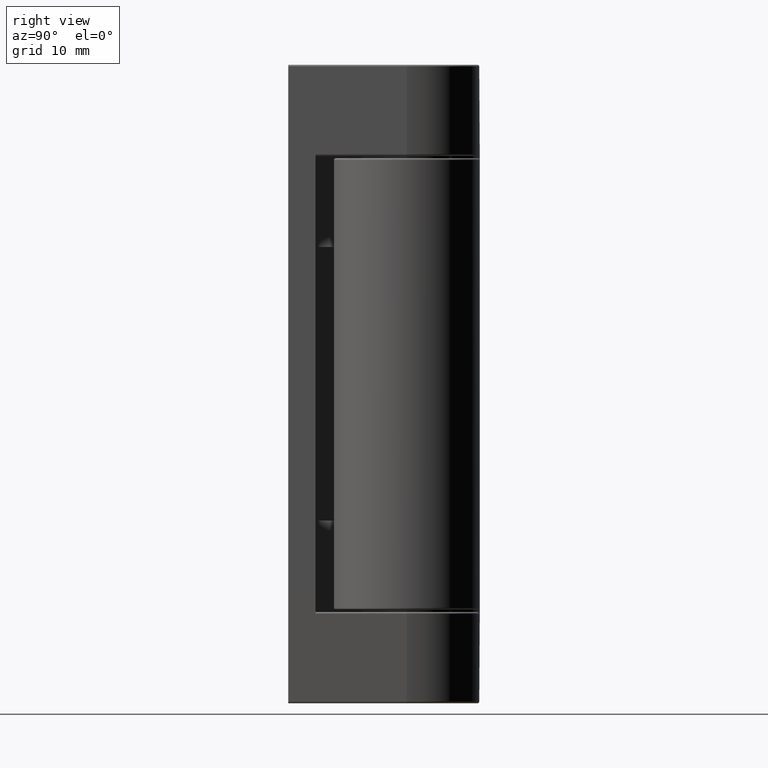
[diagram: clean part render]
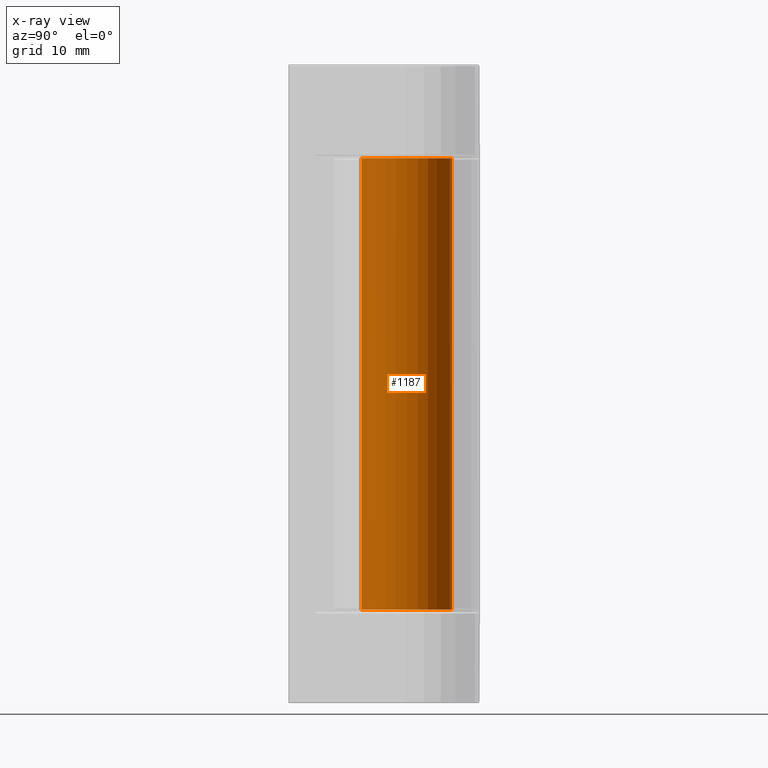
[diagram: x-ray — body ghosted, one internal face saturated and labeled with its STEP entity id]
A machine part, right view, then the same camera in x-ray: the body is ghosted and one INTERNAL B-rep face — a face not visible from any outside direction — is saturated and labeled: STEP entity #1187.
In plain terms, the highlighted cylindrical surface (bore or boss wall) has radius 5 mm, axis along (0, 0, -1).
Its self-contained STEP definition (entity closure, byte-faithful):
#37=FACE_BOUND('',#212,.T.);
#38=FACE_BOUND('',#213,.T.);
#137=FACE_OUTER_BOUND('',#211,.T.);
#211=EDGE_LOOP('',(#954));
#212=EDGE_LOOP('',(#955,#956,#957,#958));
#213=EDGE_LOOP('',(#959));
#316=LINE('',#1916,#407);
#330=LINE('',#1944,#421);
#407=VECTOR('',#1525,19.);
#421=VECTOR('',#1551,19.);
#487=CIRCLE('',#1282,5.);
#488=CIRCLE('',#1285,5.);
#489=CIRCLE('',#1294,5.);
#490=CIRCLE('',#1295,5.);
#571=VERTEX_POINT('',#1902);
#572=VERTEX_POINT('',#1903);
#577=VERTEX_POINT('',#1915);
#579=VERTEX_POINT('',#1921);
#589=VERTEX_POINT('',#1959);
#590=VERTEX_POINT('',#1961);
#701=EDGE_CURVE('',#571,#572,#487,.T.);
#707=EDGE_CURVE('',#577,#571,#316,.T.);
#710=EDGE_CURVE('',#579,#577,#488,.T.);
#722=EDGE_CURVE('',#572,#579,#330,.T.);
#730=EDGE_CURVE('',#589,#589,#489,.T.);
#731=EDGE_CURVE('',#590,#590,#490,.T.);
#954=ORIENTED_EDGE('',*,*,#730,.F.);
#955=ORIENTED_EDGE('',*,*,#722,.T.);
#956=ORIENTED_EDGE('',*,*,#710,.T.);
#957=ORIENTED_EDGE('',*,*,#707,.T.);
#958=ORIENTED_EDGE('',*,*,#701,.T.);
#959=ORIENTED_EDGE('',*,*,#731,.F.);
#1138=CYLINDRICAL_SURFACE('',#1293,5.);
#1187=ADVANCED_FACE('',(#137,#37,#38),#1138,.F.);
#1282=AXIS2_PLACEMENT_3D('',#1904,#1516,#1517);
#1285=AXIS2_PLACEMENT_3D('',#1922,#1530,#1531);
#1293=AXIS2_PLACEMENT_3D('',#1958,#1565,#1566);
#1294=AXIS2_PLACEMENT_3D('',#1960,#1567,#1568);
#1295=AXIS2_PLACEMENT_3D('',#1962,#1569,#1570);
#1516=DIRECTION('center_axis',(0.,0.,1.));
#1517=DIRECTION('ref_axis',(-1.,0.,0.));
#1525=DIRECTION('',(0.,0.,-1.));
#1530=DIRECTION('center_axis',(0.,0.,-1.));
#1531=DIRECTION('ref_axis',(-1.,0.,0.));
#1551=DIRECTION('',(0.,0.,1.));
#1565=DIRECTION('center_axis',(0.,0.,-1.));
#1566=DIRECTION('ref_axis',(-1.,0.,0.));
#1567=DIRECTION('center_axis',(0.,0.,1.));
#1568=DIRECTION('ref_axis',(-1.,0.,0.));
#1569=DIRECTION('center_axis',(0.,0.,-1.));
#1570=DIRECTION('ref_axis',(-1.,0.,0.));
#1902=CARTESIAN_POINT('',(14.,17.,-44.5));
#1903=CARTESIAN_POINT('',(14.,8.99999999999999,-44.5));
#1904=CARTESIAN_POINT('Origin',(17.,13.,-44.5));
#1915=CARTESIAN_POINT('',(14.,17.,-25.5));
#1916=CARTESIAN_POINT('',(14.,17.,-10.25));
#1921=CARTESIAN_POINT('',(14.,8.99999999999999,-25.5));
#1922=CARTESIAN_POINT('Origin',(17.,13.,-25.5));
#1944=CARTESIAN_POINT('',(14.,8.99999999999999,-10.25));
#1958=CARTESIAN_POINT('Origin',(17.,13.,-10.25));
#1959=CARTESIAN_POINT('',(22.,13.,-59.75));
#1960=CARTESIAN_POINT('Origin',(17.,13.,-59.75));
#1961=CARTESIAN_POINT('',(22.,13.,-10.25));
#1962=CARTESIAN_POINT('Origin',(17.,13.,-10.25));